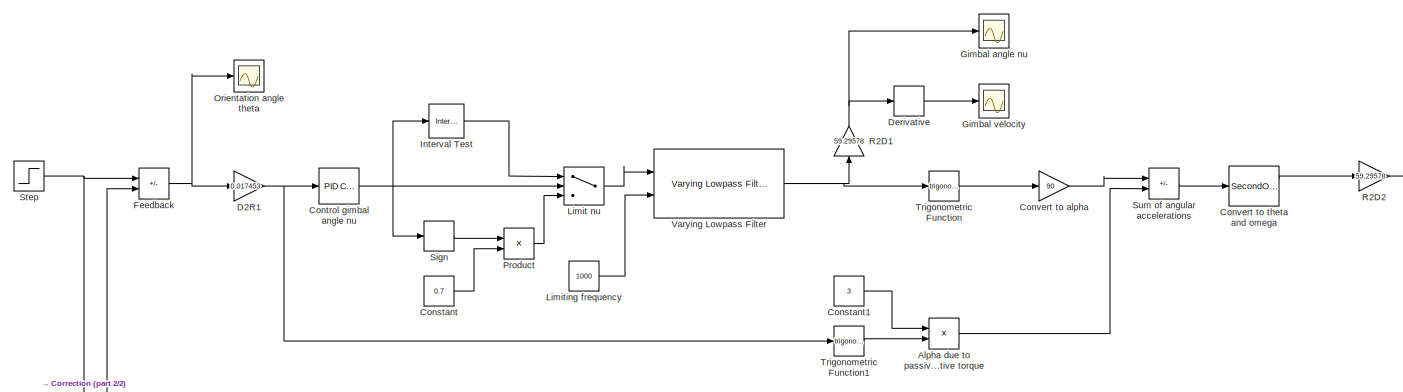
[diagram: root canvas - part 1/2, most of the canvas]
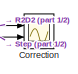
[diagram: root canvas - part 2/2, middle right region]
MODEL slx_3bd3c9f732f4
KIND model
CONFIG AbsTol = auto
CONFIG EnableMultiTasking = off
CONFIG FixedStep = auto
CONFIG MaxStep = auto
CONFIG MinStep = auto
CONFIG RelTol = 1e-3
CONFIG SampleTimeConstraint = Unconstrained
CONFIG SolverName = VariableStepAuto
CONFIG StartTime = 0.0
CONFIG StopTime = 10.0
BLOCK [Product] Alpha due to passive restorative torque
  Ports = [2, 1]
BLOCK [Constant] Constant
  Value = 0.7
BLOCK [Constant] Constant1
  Value = 3
BLOCK [Reference] Control gimbal angle nu  REF=pid_lib/PID Controller
  Ports = [1, 1]
  SourceBlock = pid_lib/PID Controller
  SourceProductBaseCode = SL
  SourceType = PID 1dof
BLOCK [Gain] Convert to alpha
  Gain = 90
BLOCK [SecondOrderIntegrator] Convert to theta and omega
  Ports = [1, 2]
BLOCK [Scope] Correction
  Floating = off
  NumInputPorts = 2
  Ports = [2]
  ScopeSpecificationString = Simulink.scopes.TimeScopeBlockCfg('CurrentConfiguration', extmgr.ConfigurationSet(extmgr.Configuration('Core','General UI',true),extmgr.Configuration('Core','Source UI',true),extmgr.Configuration('Sources','WiredSimulink',true),extmgr.Configuration('Visuals','Time Domain',true,'SerializedDisplays',{struct('MinYLimReal','-6.06101','MaxYLimReal','54.54908','YLabelReal','','MinYLimMag','0.00000','Max...<+1364ch>
BLOCK [Gain] D2R1
  Gain = 0.017453
BLOCK [Derivative] Derivative
BLOCK [Sum] Feedback
  IconShape = rectangular
  Inputs = +-
  Ports = [2, 1]
BLOCK [Scope] Gimbal angle nu
  Floating = off
  NumInputPorts = 1
  Ports = [1]
  ScopeSpecificationString = Simulink.scopes.TimeScopeBlockCfg('CurrentConfiguration', extmgr.ConfigurationSet(extmgr.Configuration('Core','General UI',true),extmgr.Configuration('Core','Source UI',true),extmgr.Configuration('Sources','WiredSimulink',true,'DataLoggingVariableName','ScopeData1'),extmgr.Configuration('Visuals','Time Domain',true,'SerializedDisplays',{struct('MinYLimReal','-37.72887','MaxYLimReal','50.31415','YL...<+1398ch>
BLOCK [Scope] Gimbal velocity
  Floating = off
  NumInputPorts = 1
  Ports = [1]
  ScopeSpecificationString = Simulink.scopes.TimeScopeBlockCfg('CurrentConfiguration', extmgr.ConfigurationSet(extmgr.Configuration('Core','General UI',true),extmgr.Configuration('Core','Source UI',true),extmgr.Configuration('Sources','WiredSimulink',true,'DataLoggingVariableName','ScopeData1'),extmgr.Configuration('Visuals','Time Domain',true,'SerializedDisplays',{struct('MinYLimReal','-8641.74729','MaxYLimReal','47064.36183...<+1424ch>
BLOCK [Reference] Interval Test  REF=simulink/Logic and Bit
Operations/Interval Test
  Ports = [1, 1]
  SourceBlock = simulink/Logic and Bit\nOperations/Interval Test
  SourceProductBaseCode = SL
  SourceType = Interval Test
BLOCK [MultiPortSwitch] Limit nu
  DataPortIndices = {1,0}
  DataPortOrder = Specify indices
  InputSameDT = off
  Inputs = 2
  Ports = [3, 1]
  SaturateOnIntegerOverflow = off
BLOCK [Constant] Limiting frequency
  Value = 1000
BLOCK [Scope] Orientation angle theta
  Floating = off
  NumInputPorts = 1
  Ports = [1]
  ScopeSpecificationString = Simulink.scopes.TimeScopeBlockCfg('CurrentConfiguration', extmgr.ConfigurationSet(extmgr.Configuration('Core','General UI',true),extmgr.Configuration('Core','Source UI',true),extmgr.Configuration('Sources','WiredSimulink',true,'DataLoggingVariableName','ScopeData1'),extmgr.Configuration('Visuals','Time Domain',true,'SerializedDisplays',{struct('MinYLimReal','-14.02052','MaxYLimReal','51.55784','YL...<+1403ch>
BLOCK [Product] Product
  Ports = [2, 1]
BLOCK [Gain] R2D1
  Gain = 59.29578
  NameLocation = right
BLOCK [Gain] R2D2
  Gain = 59.29578
BLOCK [Signum] Sign
BLOCK [Step] Step
  After = 45
  SampleTime = 0
BLOCK [Sum] Sum of angular accelerations
  IconShape = rectangular
  Inputs = +-
  Ports = [2, 1]
BLOCK [Trigonometry] Trigonometric Function
  Ports = [1, 1]
BLOCK [Trigonometry] Trigonometric Function1
  Ports = [1, 1]
BLOCK [Reference] Varying Lowpass Filter  REF=cstblocks/Linear Parameter Varying/Varying Lowpass Filter
  Ports = [2, 1]
  SourceBlock = cstblocks/Linear Parameter Varying/Varying Lowpass Filter
  SourceProductBaseCode = CT
  SourceType = Varying Lowpass Filter
LINE Alpha due to passive restorative torque:1 -> Sum of angular accelerations:2
LINE Constant1:1 -> Alpha due to passive restorative torque:1
LINE Constant:1 -> Product:2
NET Control gimbal angle nu:1 -> Interval Test:1, Limit nu:2, Sign:1
LINE Convert to alpha:1 -> Sum of angular accelerations:1
LINE Convert to theta and omega:1 -> R2D2:1
NET D2R1:1 -> Control gimbal angle nu:1, Trigonometric Function1:1
LINE Derivative:1 -> Gimbal velocity:1
NET Feedback:1 -> D2R1:1, Orientation angle theta:1
LINE Interval Test:1 -> Limit nu:1
LINE Limit nu:1 -> Varying Lowpass Filter:1
LINE Limiting frequency:1 -> Varying Lowpass Filter:2
LINE Product:1 -> Limit nu:3
NET R2D1:1 -> Derivative:1, Gimbal angle nu:1
NET R2D2:1 -> Correction:1, Feedback:2
LINE Sign:1 -> Product:1
NET Step:1 -> Correction:2, Feedback:1
LINE Sum of angular accelerations:1 -> Convert to theta and omega:1
LINE Trigonometric Function1:1 -> Alpha due to passive restorative torque:2
LINE Trigonometric Function:1 -> Convert to alpha:1
NET Varying Lowpass Filter:1 -> R2D1:1, Trigonometric Function:1
note: NET lines group one-source signal fan-out (src -> all destinations, sorted); 1:1 wires keep LINE
